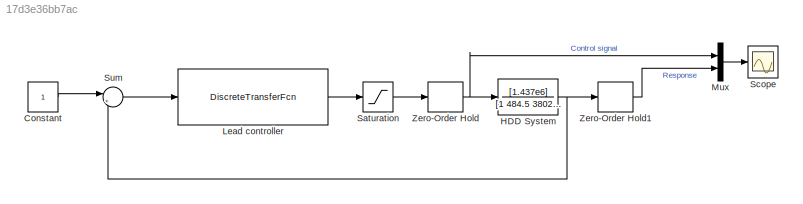
MODEL slx_17d3e36bb7ac
KIND model
CONFIG AbsTol = auto
CONFIG EnableMultiTasking = off
CONFIG FixedStep = auto
CONFIG MaxStep = auto
CONFIG MinStep = auto
CONFIG RelTol = 1e-3
CONFIG SampleTimeConstraint = Unconstrained
CONFIG Solver = VariableStepAuto
CONFIG SolverName = VariableStepAuto
CONFIG StartTime = 0.0
CONFIG StopTime = 0.5
BLOCK [Constant] Constant
BLOCK [TransferFcn] HDD System
  Denominator = [1 484.5 38025 253000]
  Numerator = [1.437e6]
BLOCK [DiscreteTransferFcn] Lead controller
  Denominator = [1 -0.9485]
  InputPortMap = u0
  Numerator = [2.013 -1.961]
  Ports = [1, 1]
  SampleTime = 0.0002
BLOCK [Mux] Mux
  DisplayOption = bar
  Inputs = 2
  Ports = [2, 1]
BLOCK [Saturate] Saturation
  InputPortMap = u0
  LowerLimit = -6
  Ports = [1, 1]
  UpperLimit = 6
BLOCK [Scope] Scope
  Floating = off
  NumInputPorts = 1
  Ports = [1]
  ScopeSpecificationString = Simulink.scopes.TimeScopeBlockCfg('CurrentConfiguration', extmgr.ConfigurationSet(extmgr.Configuration('Core','General UI',true),extmgr.Configuration('Core','Source UI',true),extmgr.Configuration('Sources','WiredSimulink',true,'DataLogging',true,'DataLoggingVariableName','LeadStepResponse','DataLoggingSaveFormat','Array'),extmgr.Configuration('Visuals','Time Domain',true,'SerializedDisplays',{stru...<+1619ch>
BLOCK [Sum] Sum
  IconShape = round
  InputSameDT = off
  Inputs = |+-
  OutDataTypeStr = Inherit: Inherit via internal rule
  Ports = [2, 1]
  SaturateOnIntegerOverflow = off
BLOCK [ZeroOrderHold] Zero-Order Hold
  SampleTime = 0.0002
BLOCK [ZeroOrderHold] Zero-Order Hold1
  SampleTime = 0.0002
LINE Constant:1 -> Sum:1
NET HDD System:1 -> Sum:2, Zero-Order Hold1:1
LINE Lead controller:1 -> Saturation:1
LINE Mux:1 -> Scope:1
LINE Saturation:1 -> Zero-Order Hold:1
LINE Sum:1 -> Lead controller:1
LINE Zero-Order Hold1:1 -> Mux:2
NET Zero-Order Hold:1 -> HDD System:1, Mux:1
note: NET lines group one-source signal fan-out (src -> all destinations, sorted); 1:1 wires keep LINE
